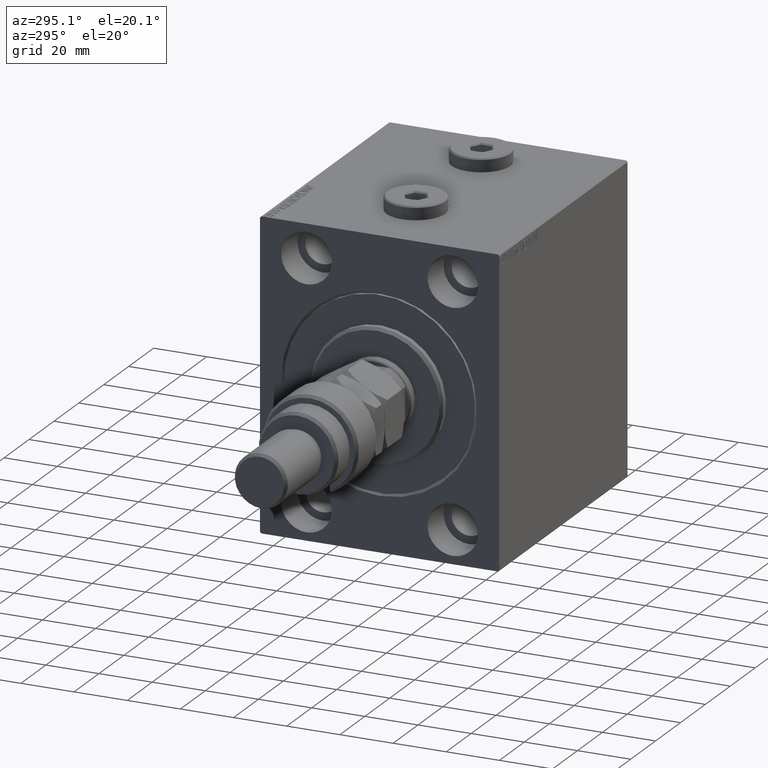
[diagram: clean part render]
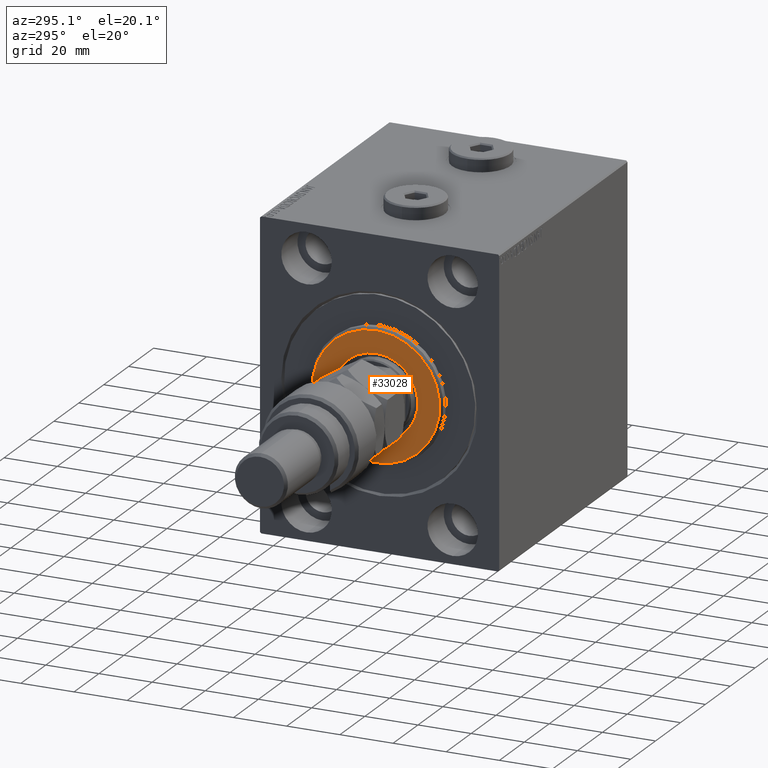
[diagram: same view with one face highlighted and labeled with its STEP entity id]
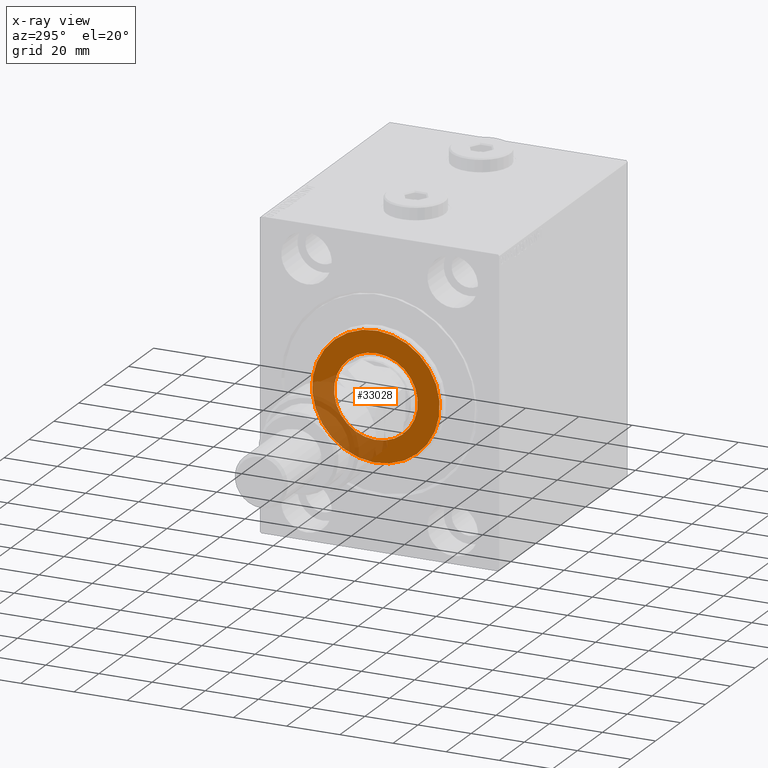
[diagram: x-ray of the same camera — body ghosted, the highlighted face saturated]
A machine part, auxiliary view. The second image highlights one B-rep face of the part: STEP entity #33028.
The next image is the same camera in x-ray: the body ghosted, the highlighted face saturated — about 29% of this face is hidden behind the body in this view.
In plain terms, the highlighted planar face has unit normal (-1, 0, 0).
Its self-contained STEP definition (entity closure, byte-faithful):
#1868 = CIRCLE ( 'NONE', #18135, 24.00000000000003553 ) ;
#3535 = VERTEX_POINT ( 'NONE', #23746 ) ;
#3668 = EDGE_LOOP ( 'NONE', ( #22113, #5933 ) ) ;
#4057 = CARTESIAN_POINT ( 'NONE',  ( 3.000000000000000000, 0.000000000000000000, 0.000000000000000000 ) ) ;
#4435 = ORIENTED_EDGE ( 'NONE', *, *, #43822, .T. ) ;
#5798 = DIRECTION ( 'NONE',  ( 0.000000000000000000, 0.000000000000000000, -1.000000000000000000 ) ) ;
#5924 = AXIS2_PLACEMENT_3D ( 'NONE', #31029, #23763, #14883 ) ;
#5933 = ORIENTED_EDGE ( 'NONE', *, *, #17756, .T. ) ;
#7035 = AXIS2_PLACEMENT_3D ( 'NONE', #17007, #13118, #42484 ) ;
#7466 = CIRCLE ( 'NONE', #5924, 15.75000000000000000 ) ;
#9225 = PLANE ( 'NONE',  #7035 ) ;
#9541 = CARTESIAN_POINT ( 'NONE',  ( 3.000000000000000000, 0.000000000000000000, 15.75000000000000000 ) ) ;
#9647 = CIRCLE ( 'NONE', #42984, 24.00000000000003553 ) ;
#12804 = AXIS2_PLACEMENT_3D ( 'NONE', #4057, #41169, #18845 ) ;
#12881 = FACE_BOUND ( 'NONE', #35982, .T. ) ;
#12996 = DIRECTION ( 'NONE',  ( 0.000000000000000000, 0.000000000000000000, -1.000000000000000000 ) ) ;
#13118 = DIRECTION ( 'NONE',  ( 1.000000000000000000, -0.000000000000000000, 0.000000000000000000 ) ) ;
#13979 = VERTEX_POINT ( 'NONE', #14476 ) ;
#14476 = CARTESIAN_POINT ( 'NONE',  ( 3.000000000000000000, 1.928818708657080950E-15, -15.75000000000000000 ) ) ;
#14883 = DIRECTION ( 'NONE',  ( 0.000000000000000000, 0.000000000000000000, -1.000000000000000000 ) ) ;
#17007 = CARTESIAN_POINT ( 'NONE',  ( 3.000000000000000000, 0.000000000000000000, 0.000000000000000000 ) ) ;
#17756 = EDGE_CURVE ( 'NONE', #3535, #19215, #9647, .T. ) ;
#18135 = AXIS2_PLACEMENT_3D ( 'NONE', #39026, #35850, #5798 ) ;
#18713 = EDGE_CURVE ( 'NONE', #13979, #38879, #28278, .T. ) ;
#18845 = DIRECTION ( 'NONE',  ( 0.000000000000000000, 0.000000000000000000, -1.000000000000000000 ) ) ;
#19215 = VERTEX_POINT ( 'NONE', #31309 ) ;
#22113 = ORIENTED_EDGE ( 'NONE', *, *, #37410, .T. ) ;
#23746 = CARTESIAN_POINT ( 'NONE',  ( 3.000000000000000000, 3.000384657911017441E-15, -24.00000000000003553 ) ) ;
#23763 = DIRECTION ( 'NONE',  ( -1.000000000000000000, 0.000000000000000000, -0.000000000000000000 ) ) ;
#26676 = ORIENTED_EDGE ( 'NONE', *, *, #18713, .T. ) ;
#28278 = CIRCLE ( 'NONE', #12804, 15.75000000000000000 ) ;
#31029 = CARTESIAN_POINT ( 'NONE',  ( 3.000000000000000000, 0.000000000000000000, 0.000000000000000000 ) ) ;
#31309 = CARTESIAN_POINT ( 'NONE',  ( 3.000000000000000000, 0.000000000000000000, 24.00000000000003553 ) ) ;
#33028 = ADVANCED_FACE ( 'NONE', ( #39798, #12881 ), #9225, .T. ) ;
#34828 = CARTESIAN_POINT ( 'NONE',  ( 3.000000000000000000, 0.000000000000000000, 0.000000000000000000 ) ) ;
#35850 = DIRECTION ( 'NONE',  ( 1.000000000000000000, -0.000000000000000000, 0.000000000000000000 ) ) ;
#35982 = EDGE_LOOP ( 'NONE', ( #4435, #26676 ) ) ;
#37410 = EDGE_CURVE ( 'NONE', #19215, #3535, #1868, .T. ) ;
#38478 = DIRECTION ( 'NONE',  ( 1.000000000000000000, -0.000000000000000000, 0.000000000000000000 ) ) ;
#38879 = VERTEX_POINT ( 'NONE', #9541 ) ;
#39026 = CARTESIAN_POINT ( 'NONE',  ( 3.000000000000000000, 0.000000000000000000, 0.000000000000000000 ) ) ;
#39798 = FACE_OUTER_BOUND ( 'NONE', #3668, .T. ) ;
#41169 = DIRECTION ( 'NONE',  ( -1.000000000000000000, 0.000000000000000000, -0.000000000000000000 ) ) ;
#42484 = DIRECTION ( 'NONE',  ( 0.000000000000000000, 0.000000000000000000, -1.000000000000000000 ) ) ;
#42984 = AXIS2_PLACEMENT_3D ( 'NONE', #34828, #38478, #12996 ) ;
#43822 = EDGE_CURVE ( 'NONE', #38879, #13979, #7466, .T. ) ;